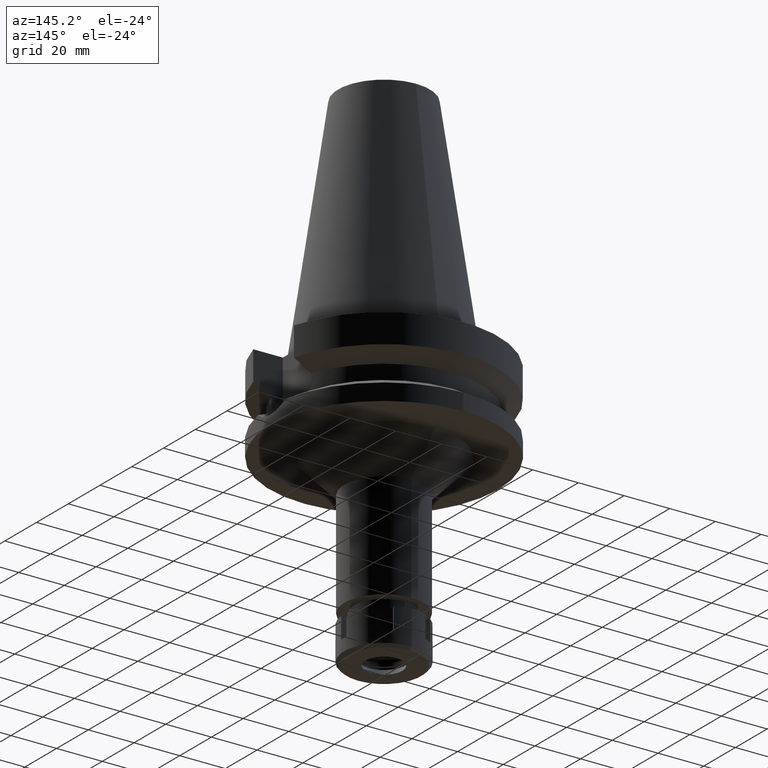
[diagram: clean part render]
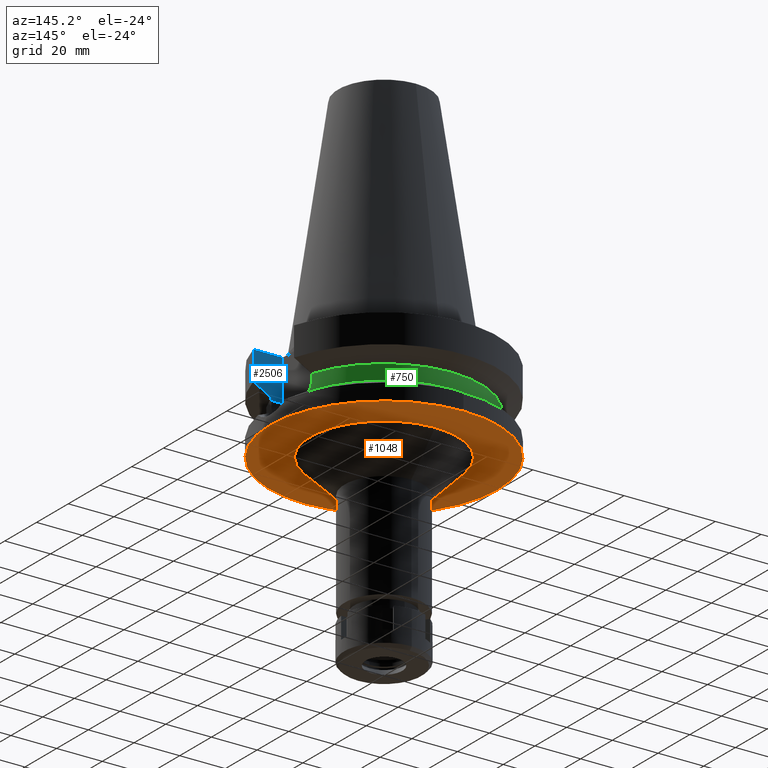
[diagram: same view with three faces highlighted in distinct colors, each labeled with its STEP entity id]
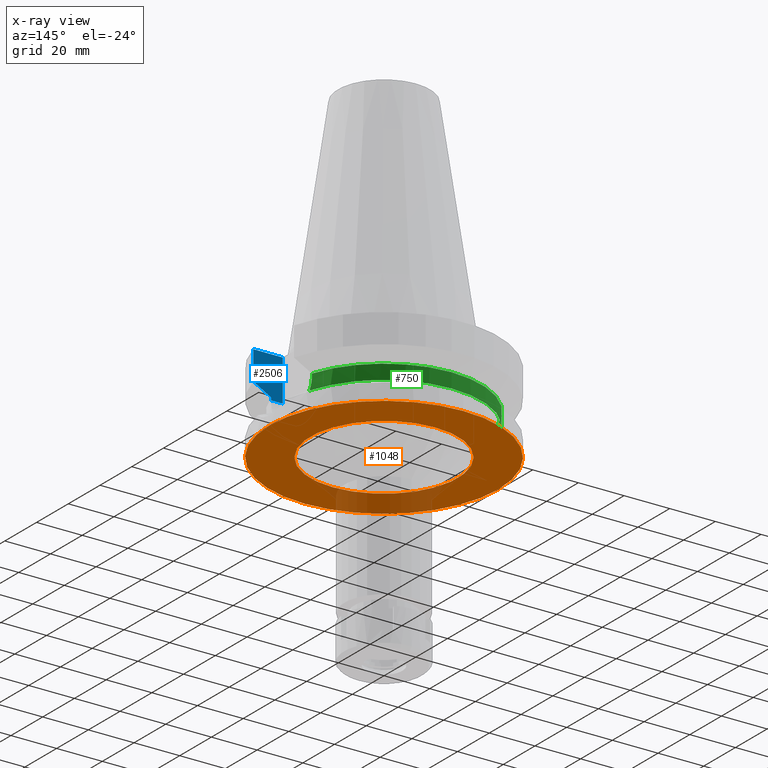
[diagram: x-ray of the same camera — body ghosted, the three highlighted faces saturated]
A machine part, auxiliary view with three faces highlighted in distinct colors.
The next image is the same camera in x-ray (body ghosted, the three faces saturated) — at least one of them is partly hidden behind the body in this view.
Their STEP definitions:

[orange] entity #1048 — the highlighted planar face has unit normal (0, 0, -1).
#34 = VERTEX_POINT ( 'NONE', #474 ) ;
#240 = CARTESIAN_POINT ( 'NONE',  ( 0.0000000000000000000, 50.00000000000000000, -38.00000000000000000 ) ) ;
#270 = CARTESIAN_POINT ( 'NONE',  ( 0.0000000000000000000, 32.25000000000000000, -38.00000000000000000 ) ) ;
#401 = AXIS2_PLACEMENT_3D ( 'NONE', #2358, #3289, #481 ) ;
#402 = ORIENTED_EDGE ( 'NONE', *, *, #2049, .F. ) ;
#452 = AXIS2_PLACEMENT_3D ( 'NONE', #1863, #1608, #2948 ) ;
#474 = CARTESIAN_POINT ( 'NONE',  ( 0.0000000000000000000, -32.25000000000000000, -38.00000000000000000 ) ) ;
#481 = DIRECTION ( 'NONE',  ( 0.0000000000000000000, 1.000000000000000000, 0.0000000000000000000 ) ) ;
#539 = ORIENTED_EDGE ( 'NONE', *, *, #981, .F. ) ;
#651 = CARTESIAN_POINT ( 'NONE',  ( 0.0000000000000000000, 2.602251983507999750E-14, -38.00000000000000000 ) ) ;
#677 = PLANE ( 'NONE',  #452 ) ;
#817 = DIRECTION ( 'NONE',  ( 0.0000000000000000000, -1.000000000000000000, 0.0000000000000000000 ) ) ;
#826 = ORIENTED_EDGE ( 'NONE', *, *, #3524, .F. ) ;
#981 = EDGE_CURVE ( 'NONE', #2389, #2261, #984, .T. ) ;
#984 = CIRCLE ( 'NONE', #401, 50.00000000000000000 ) ;
#1047 = CIRCLE ( 'NONE', #2947, 32.25000000000000000 ) ;
#1048 = ADVANCED_FACE ( 'NONE', ( #3601, #1290 ), #677, .T. ) ;
#1090 = DIRECTION ( 'NONE',  ( 0.0000000000000000000, 1.000000000000000000, 0.0000000000000000000 ) ) ;
#1209 = EDGE_LOOP ( 'NONE', ( #402, #826 ) ) ;
#1243 = EDGE_LOOP ( 'NONE', ( #539, #1246 ) ) ;
#1246 = ORIENTED_EDGE ( 'NONE', *, *, #3369, .F. ) ;
#1290 = FACE_BOUND ( 'NONE', #1209, .T. ) ;
#1367 = CARTESIAN_POINT ( 'NONE',  ( 0.0000000000000000000, 0.0000000000000000000, -38.00000000000000000 ) ) ;
#1368 = DIRECTION ( 'NONE',  ( 0.0000000000000000000, 0.0000000000000000000, -1.000000000000000000 ) ) ;
#1608 = DIRECTION ( 'NONE',  ( 0.0000000000000000000, 0.0000000000000000000, -1.000000000000000000 ) ) ;
#1719 = AXIS2_PLACEMENT_3D ( 'NONE', #651, #1797, #2975 ) ;
#1797 = DIRECTION ( 'NONE',  ( 0.0000000000000000000, 0.0000000000000000000, 1.000000000000000000 ) ) ;
#1863 = CARTESIAN_POINT ( 'NONE',  ( 0.0000000000000000000, 0.0000000000000000000, -38.00000000000000000 ) ) ;
#1942 = DIRECTION ( 'NONE',  ( 0.0000000000000000000, 0.0000000000000000000, -1.000000000000000000 ) ) ;
#2049 = EDGE_CURVE ( 'NONE', #2664, #34, #1047, .T. ) ;
#2090 = CIRCLE ( 'NONE', #2966, 32.25000000000000000 ) ;
#2261 = VERTEX_POINT ( 'NONE', #3003 ) ;
#2358 = CARTESIAN_POINT ( 'NONE',  ( 0.0000000000000000000, 2.602251983507999750E-14, -38.00000000000000000 ) ) ;
#2389 = VERTEX_POINT ( 'NONE', #240 ) ;
#2664 = VERTEX_POINT ( 'NONE', #270 ) ;
#2733 = CARTESIAN_POINT ( 'NONE',  ( 0.0000000000000000000, 0.0000000000000000000, -38.00000000000000000 ) ) ;
#2947 = AXIS2_PLACEMENT_3D ( 'NONE', #1367, #1942, #1090 ) ;
#2948 = DIRECTION ( 'NONE',  ( 0.0000000000000000000, -1.000000000000000000, 0.0000000000000000000 ) ) ;
#2966 = AXIS2_PLACEMENT_3D ( 'NONE', #2733, #1368, #817 ) ;
#2975 = DIRECTION ( 'NONE',  ( 0.0000000000000000000, -1.000000000000000000, 0.0000000000000000000 ) ) ;
#3003 = CARTESIAN_POINT ( 'NONE',  ( 0.0000000000000000000, -50.00000000000000000, -38.00000000000000000 ) ) ;
#3289 = DIRECTION ( 'NONE',  ( 0.0000000000000000000, 0.0000000000000000000, 1.000000000000000000 ) ) ;
#3317 = CIRCLE ( 'NONE', #1719, 50.00000000000000000 ) ;
#3369 = EDGE_CURVE ( 'NONE', #2261, #2389, #3317, .T. ) ;
#3524 = EDGE_CURVE ( 'NONE', #34, #2664, #2090, .T. ) ;
#3601 = FACE_OUTER_BOUND ( 'NONE', #1243, .T. ) ;

[blue] entity #2506 — the highlighted planar face has unit normal (0, -1, 0).
#78 = VERTEX_POINT ( 'NONE', #712 ) ;
#82 = DIRECTION ( 'NONE',  ( -8.097482992936604252E-08, -3.044939632422851171E-07, -0.9999999999999503730 ) ) ;
#129 = ORIENTED_EDGE ( 'NONE', *, *, #3005, .T. ) ;
#198 = ORIENTED_EDGE ( 'NONE', *, *, #2754, .T. ) ;
#200 = FACE_OUTER_BOUND ( 'NONE', #2979, .T. ) ;
#220 = VERTEX_POINT ( 'NONE', #318 ) ;
#254 = CARTESIAN_POINT ( 'NONE',  ( 48.32057015392000210, -12.84999999999999964, -15.66269223573000069 ) ) ;
#290 = CARTESIAN_POINT ( 'NONE',  ( 48.32057015392000210, -12.84999999999999964, -3.000000000000000000 ) ) ;
#318 = CARTESIAN_POINT ( 'NONE',  ( 35.39999999999999858, -12.84999999999999964, -21.14999999999999858 ) ) ;
#504 = LINE ( 'NONE', #1638, #3133 ) ;
#562 = LINE ( 'NONE', #290, #1989 ) ;
#657 = ORIENTED_EDGE ( 'NONE', *, *, #2688, .T. ) ;
#687 = ORIENTED_EDGE ( 'NONE', *, *, #1213, .T. ) ;
#712 = CARTESIAN_POINT ( 'NONE',  ( 40.51083188481999997, -12.84999999999999964, -19.99281925464999787 ) ) ;
#822 = CARTESIAN_POINT ( 'NONE',  ( 48.32057015392000210, -12.84999999999999964, -15.66269223573000069 ) ) ;
#848 = LINE ( 'NONE', #3375, #3301 ) ;
#1046 = DIRECTION ( 'NONE',  ( 0.0000000000000000000, -1.000000000000000000, 0.0000000000000000000 ) ) ;
#1134 = VERTEX_POINT ( 'NONE', #3247 ) ;
#1191 = CARTESIAN_POINT ( 'NONE',  ( 45.51179411561270882, -12.85000770575941154, -17.22986976345794119 ) ) ;
#1213 = EDGE_CURVE ( 'NONE', #2869, #1134, #848, .T. ) ;
#1226 = AXIS2_PLACEMENT_3D ( 'NONE', #3599, #1046, #3320 ) ;
#1465 = CARTESIAN_POINT ( 'NONE',  ( 40.51083188481999997, -12.84999999999999964, -19.99281925464999787 ) ) ;
#1638 = CARTESIAN_POINT ( 'NONE',  ( 40.51083188481999997, -12.84999999999999964, -21.14999999999999858 ) ) ;
#1989 = VECTOR ( 'NONE', #82, 1000.000000000000114 ) ;
#2085 = LINE ( 'NONE', #3221, #3164 ) ;
#2209 = B_SPLINE_CURVE_WITH_KNOTS ( 'NONE', 3,
 ( #1465, #3384, #1191, #822 ),
 .UNSPECIFIED., .F., .F.,
 ( 4, 4 ),
 ( 0.0000000000000000000, 1.000000000000000000 ),
 .UNSPECIFIED. ) ;
#2221 = CARTESIAN_POINT ( 'NONE',  ( 40.51083188481999997, -12.84999999999999964, -21.14999999999999858 ) ) ;
#2386 = DIRECTION ( 'NONE',  ( -9.461172470233040174E-07, -2.982726037709009933E-06, -0.9999999999951040275 ) ) ;
#2461 = PLANE ( 'NONE',  #1226 ) ;
#2472 = DIRECTION ( 'NONE',  ( 0.0000000000000000000, 0.0000000000000000000, 1.000000000000000000 ) ) ;
#2475 = ORIENTED_EDGE ( 'NONE', *, *, #2924, .T. ) ;
#2506 = ADVANCED_FACE ( 'NONE', ( #200 ), #2461, .F. ) ;
#2542 = VECTOR ( 'NONE', #2472, 1000.000000000000000 ) ;
#2559 = DIRECTION ( 'NONE',  ( 1.000000000000000000, 0.0000000000000000000, 0.0000000000000000000 ) ) ;
#2688 = EDGE_CURVE ( 'NONE', #1134, #3011, #562, .T. ) ;
#2737 = CARTESIAN_POINT ( 'NONE',  ( 35.39999999999999858, -12.84999999999999964, -21.14999999999999858 ) ) ;
#2754 = EDGE_CURVE ( 'NONE', #78, #3462, #2085, .T. ) ;
#2869 = VERTEX_POINT ( 'NONE', #3652 ) ;
#2924 = EDGE_CURVE ( 'NONE', #220, #2869, #3367, .T. ) ;
#2979 = EDGE_LOOP ( 'NONE', ( #129, #2475, #687, #657, #3288, #198 ) ) ;
#3005 = EDGE_CURVE ( 'NONE', #3462, #220, #504, .T. ) ;
#3011 = VERTEX_POINT ( 'NONE', #254 ) ;
#3133 = VECTOR ( 'NONE', #3635, 1000.000000000000000 ) ;
#3164 = VECTOR ( 'NONE', #2386, 1000.000000000000227 ) ;
#3209 = EDGE_CURVE ( 'NONE', #78, #3011, #2209, .T. ) ;
#3221 = CARTESIAN_POINT ( 'NONE',  ( 40.51083297961999818, -12.84999654852999917, -19.99284574232000011 ) ) ;
#3247 = CARTESIAN_POINT ( 'NONE',  ( 48.32057015392000210, -12.84999999999999964, -3.000000000000000000 ) ) ;
#3288 = ORIENTED_EDGE ( 'NONE', *, *, #3209, .F. ) ;
#3301 = VECTOR ( 'NONE', #2559, 1000.000000000000000 ) ;
#3320 = DIRECTION ( 'NONE',  ( 0.0000000000000000000, 0.0000000000000000000, -1.000000000000000000 ) ) ;
#3367 = LINE ( 'NONE', #2737, #2542 ) ;
#3375 = CARTESIAN_POINT ( 'NONE',  ( 35.39999999999999858, -12.84999999999999964, -3.000000000000000000 ) ) ;
#3384 = CARTESIAN_POINT ( 'NONE',  ( 42.90862806404121699, -12.84999309060656358, -18.67324603586006759 ) ) ;
#3462 = VERTEX_POINT ( 'NONE', #2221 ) ;
#3599 = CARTESIAN_POINT ( 'NONE',  ( 35.39999999999999858, -12.84999999999999964, -3.000000000000000000 ) ) ;
#3635 = DIRECTION ( 'NONE',  ( -1.000000000000000000, -3.510427359434999885E-14, 0.0000000000000000000 ) ) ;
#3652 = CARTESIAN_POINT ( 'NONE',  ( 35.39999999999999858, -12.84999999999999964, -3.000000000000000000 ) ) ;

[green] entity #750 — the highlighted cylindrical surface (partial cylindrical patch) has radius 42.5 mm, axis along (0, 0, -1).
#22 = VERTEX_POINT ( 'NONE', #2978 ) ;
#35 = CIRCLE ( 'NONE', #2881, 42.50000000000002132 ) ;
#114 = DIRECTION ( 'NONE',  ( -0.9531960443486575674, 0.3023529411764863672, 0.0000000000000000000 ) ) ;
#144 = LINE ( 'NONE', #1267, #1881 ) ;
#186 = CARTESIAN_POINT ( 'NONE',  ( 40.61156896389181270, 12.52821669071923338, -24.00856318992673266 ) ) ;
#393 = CARTESIAN_POINT ( 'NONE',  ( -40.59188398425018818, 12.59182459259148956, -23.71305796896682949 ) ) ;
#447 = CARTESIAN_POINT ( 'NONE',  ( 0.0000000000000000000, 0.0000000000000000000, -26.40718074535000426 ) ) ;
#499 = CARTESIAN_POINT ( 'NONE',  ( 40.85052569294000335, 11.72538061688000077, -26.40718074535000426 ) ) ;
#549 = EDGE_CURVE ( 'NONE', #1846, #2849, #2181, .T. ) ;
#559 = B_SPLINE_CURVE_WITH_KNOTS ( 'NONE', 3,
 ( #3214, #1809, #2934, #1256, #2397, #2004, #2024, #1501, #393, #2556, #2832, #665, #3148, #1517 ),
 .UNSPECIFIED., .F., .F.,
 ( 4, 2, 2, 1, 1, 2, 2, 4 ),
 ( 0.0000000000000000000, 0.2499999999999877875, 0.3749999999999826250, 0.4374999999999801270, 0.4687499999999798495, 0.4843749999999797939, 0.4999999999999796829, 1.000000000000000000 ),
 .UNSPECIFIED. ) ;
#568 = AXIS2_PLACEMENT_3D ( 'NONE', #447, #3013, #1324 ) ;
#660 = EDGE_CURVE ( 'NONE', #1846, #1153, #2136, .T. ) ;
#665 = CARTESIAN_POINT ( 'NONE',  ( -40.65435955981745053, 12.39001970624488891, -24.66361747048510011 ) ) ;
#705 = DIRECTION ( 'NONE',  ( 9.461325923153037743E-07, 2.982774403933014049E-06, -0.9999999999951038054 ) ) ;
#750 = ADVANCED_FACE ( 'NONE', ( #1071 ), #3379, .T. ) ;
#870 = DIRECTION ( 'NONE',  ( 0.0000000000000000000, -1.000000000000000000, 0.0000000000000000000 ) ) ;
#997 = CARTESIAN_POINT ( 'NONE',  ( 40.63719938804641174, 12.44499676302016233, -24.35261212845198742 ) ) ;
#1027 = CARTESIAN_POINT ( 'NONE',  ( -40.51083188481999997, 12.84999999999999964, -21.14999999999999858 ) ) ;
#1029 = CARTESIAN_POINT ( 'NONE',  ( 40.51083188481999997, 12.84999999999999964, -22.03308001790878023 ) ) ;
#1036 = VERTEX_POINT ( 'NONE', #1027 ) ;
#1052 = CARTESIAN_POINT ( 'NONE',  ( 40.62482961095487610, 12.48525133054237379, -24.19329755004105564 ) ) ;
#1071 = FACE_OUTER_BOUND ( 'NONE', #3238, .T. ) ;
#1148 = EDGE_CURVE ( 'NONE', #1153, #22, #144, .T. ) ;
#1153 = VERTEX_POINT ( 'NONE', #3270 ) ;
#1161 = CARTESIAN_POINT ( 'NONE',  ( -40.51083188481999997, 12.84999999999999964, -19.99281925464999787 ) ) ;
#1245 = ORIENTED_EDGE ( 'NONE', *, *, #1714, .T. ) ;
#1256 = CARTESIAN_POINT ( 'NONE',  ( -40.54025313608427439, 12.75731810731626759, -22.70684014861360467 ) ) ;
#1267 = CARTESIAN_POINT ( 'NONE',  ( 40.51083188481999997, 12.84999999999999964, -21.14999999999999858 ) ) ;
#1272 = CARTESIAN_POINT ( 'NONE',  ( 40.66327695313657387, 12.35977177935063587, -24.67238797833628539 ) ) ;
#1324 = DIRECTION ( 'NONE',  ( 0.0000000000000000000, 1.000000000000000000, 0.0000000000000000000 ) ) ;
#1365 = DIRECTION ( 'NONE',  ( 0.0000000000000000000, 0.0000000000000000000, -1.000000000000000000 ) ) ;
#1457 = VECTOR ( 'NONE', #705, 1000.000000000000227 ) ;
#1469 = VERTEX_POINT ( 'NONE', #1161 ) ;
#1501 = CARTESIAN_POINT ( 'NONE',  ( -40.58662608485431633, 12.60878154790536598, -23.62927549513685221 ) ) ;
#1517 = CARTESIAN_POINT ( 'NONE',  ( -40.85052569294000335, 11.72538061688000077, -26.40718074535000426 ) ) ;
#1710 = EDGE_CURVE ( 'NONE', #1036, #2849, #559, .T. ) ;
#1714 = EDGE_CURVE ( 'NONE', #1469, #22, #35, .T. ) ;
#1767 = ORIENTED_EDGE ( 'NONE', *, *, #1148, .F. ) ;
#1809 = CARTESIAN_POINT ( 'NONE',  ( -40.51083188482000708, 12.85000000000002451, -21.59154171183185866 ) ) ;
#1846 = VERTEX_POINT ( 'NONE', #499 ) ;
#1881 = VECTOR ( 'NONE', #3546, 999.9999999999998863 ) ;
#1883 = CARTESIAN_POINT ( 'NONE',  ( 40.60613670648131546, 12.54578755583637495, -23.92964714798038628 ) ) ;
#1968 = EDGE_CURVE ( 'NONE', #1469, #1036, #3608, .T. ) ;
#2001 = ORIENTED_EDGE ( 'NONE', *, *, #1710, .F. ) ;
#2004 = CARTESIAN_POINT ( 'NONE',  ( -40.56599673094051184, 12.67509433839780897, -23.26596311455570998 ) ) ;
#2024 = CARTESIAN_POINT ( 'NONE',  ( -40.57496101843508995, 12.64633755876300647, -23.43369807928905146 ) ) ;
#2136 = B_SPLINE_CURVE_WITH_KNOTS ( 'NONE', 3,
 ( #3570, #2991, #2690, #3035, #1272, #997, #1052, #186, #1883, #2203, #3586, #2149, #1029, #3309 ),
 .UNSPECIFIED., .F., .F.,
 ( 4, 2, 2, 1, 1, 2, 2, 4 ),
 ( 0.0000000000000000000, 0.2500000000000199285, 0.3750000000000298650, 0.4375000000000346945, 0.4687500000000359157, 0.4843750000000358047, 0.5000000000000356382, 1.000000000000000000 ),
 .UNSPECIFIED. ) ;
#2149 = CARTESIAN_POINT ( 'NONE',  ( 40.54025086427707691, 12.75862911299039659, -22.93149008167891267 ) ) ;
#2181 = CIRCLE ( 'NONE', #568, 42.50000000000000000 ) ;
#2203 = CARTESIAN_POINT ( 'NONE',  ( 40.60257095199544608, 12.55731571366465182, -23.87709474180955738 ) ) ;
#2205 = CARTESIAN_POINT ( 'NONE',  ( -40.51083297964000707, 12.84999654847000095, -19.99284574275000281 ) ) ;
#2284 = CARTESIAN_POINT ( 'NONE',  ( 0.0000000000000000000, 2.602251983507999750E-14, 112.4900000000000091 ) ) ;
#2341 = ORIENTED_EDGE ( 'NONE', *, *, #1968, .F. ) ;
#2379 = ORIENTED_EDGE ( 'NONE', *, *, #660, .F. ) ;
#2397 = CARTESIAN_POINT ( 'NONE',  ( -40.54944727710435615, 12.72806419699667480, -22.93049076237651462 ) ) ;
#2444 = ORIENTED_EDGE ( 'NONE', *, *, #549, .T. ) ;
#2556 = CARTESIAN_POINT ( 'NONE',  ( -40.59544671389546977, 12.58032818125508001, -23.76890350620164227 ) ) ;
#2655 = DIRECTION ( 'NONE',  ( 0.0000000000000000000, 0.0000000000000000000, -1.000000000000000000 ) ) ;
#2678 = CARTESIAN_POINT ( 'NONE',  ( -40.85052569294000335, 11.72538061688000077, -26.40718074535000426 ) ) ;
#2690 = CARTESIAN_POINT ( 'NONE',  ( 40.74530522851000569, 12.08734613715847139, -25.53455770061882646 ) ) ;
#2832 = CARTESIAN_POINT ( 'NONE',  ( -40.59736864107516396, 12.57412283048225099, -23.79851909554432510 ) ) ;
#2849 = VERTEX_POINT ( 'NONE', #2678 ) ;
#2881 = AXIS2_PLACEMENT_3D ( 'NONE', #3124, #2655, #114 ) ;
#2888 = AXIS2_PLACEMENT_3D ( 'NONE', #2284, #1365, #870 ) ;
#2934 = CARTESIAN_POINT ( 'NONE',  ( -40.51818719763605969, 12.82722225432310204, -22.03686830847411215 ) ) ;
#2978 = CARTESIAN_POINT ( 'NONE',  ( 40.51083297786000514, 12.84999655406999963, -19.99284569974999926 ) ) ;
#2991 = CARTESIAN_POINT ( 'NONE',  ( 40.79434743163939459, 11.92110232363585531, -25.97065181133539369 ) ) ;
#3013 = DIRECTION ( 'NONE',  ( 0.0000000000000000000, 0.0000000000000000000, 1.000000000000000000 ) ) ;
#3035 = CARTESIAN_POINT ( 'NONE',  ( 40.68244601107283387, 12.29666625012446346, -24.88710380514564235 ) ) ;
#3124 = CARTESIAN_POINT ( 'NONE',  ( 0.0000000000000000000, 1.006319759053999930E-14, -19.99281925464999787 ) ) ;
#3148 = CARTESIAN_POINT ( 'NONE',  ( -40.73816957792652715, 12.11682261037110386, -25.53412604446968004 ) ) ;
#3214 = CARTESIAN_POINT ( 'NONE',  ( -40.51083188481999997, 12.84999999999999964, -21.14999999999999858 ) ) ;
#3238 = EDGE_LOOP ( 'NONE', ( #2341, #1245, #1767, #2379, #2444, #2001 ) ) ;
#3270 = CARTESIAN_POINT ( 'NONE',  ( 40.51083188481999997, 12.84999999999999964, -21.14999999999999858 ) ) ;
#3309 = CARTESIAN_POINT ( 'NONE',  ( 40.51083188481999997, 12.84999999999999964, -21.14999999999999858 ) ) ;
#3379 = CYLINDRICAL_SURFACE ( 'NONE', #2888, 42.50000000000000000 ) ;
#3546 = DIRECTION ( 'NONE',  ( 9.445966877300178609E-07, -2.977932322942059076E-06, 0.9999999999951199037 ) ) ;
#3570 = CARTESIAN_POINT ( 'NONE',  ( 40.85052569294000335, 11.72538061688000077, -26.40718074535000426 ) ) ;
#3586 = CARTESIAN_POINT ( 'NONE',  ( 40.60092750940732031, 12.56262654778542931, -23.85254111937017640 ) ) ;
#3608 = LINE ( 'NONE', #2205, #1457 ) ;